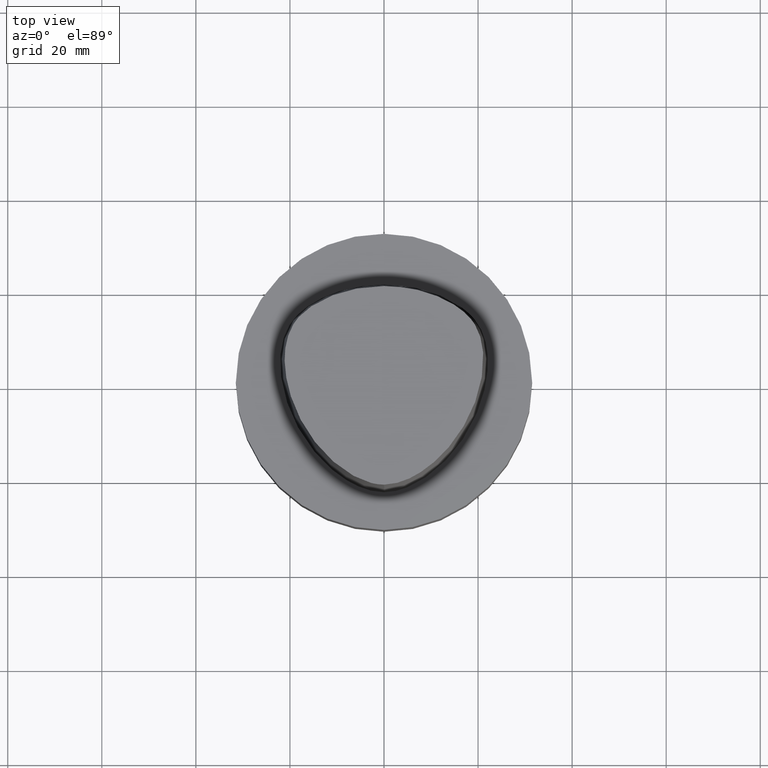
[diagram: clean part render]
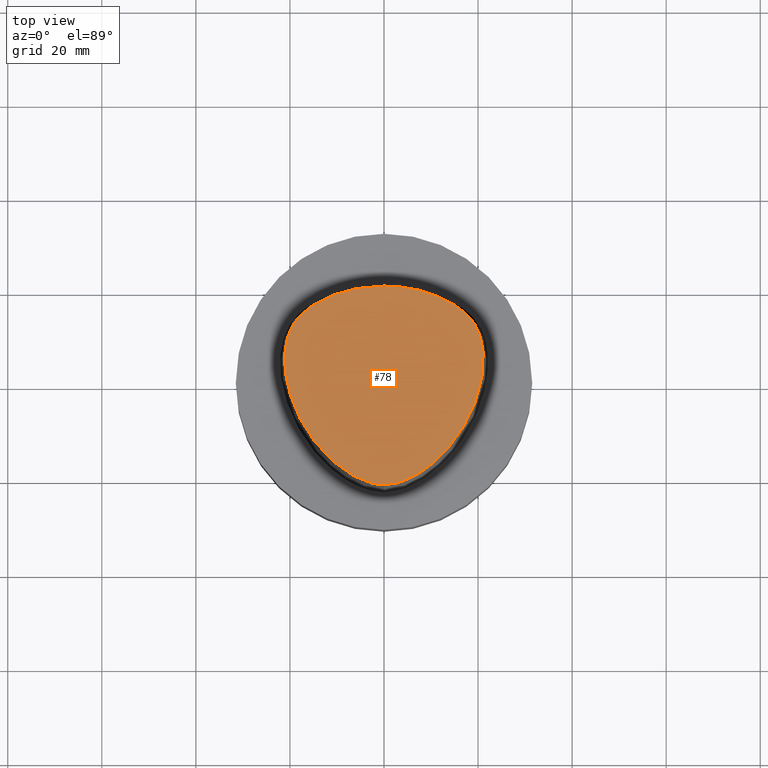
[diagram: same view with one face highlighted and labeled with its STEP entity id]
A machine part, top view. The second image highlights one B-rep face of the part: STEP entity #78.
In plain terms, the highlighted planar face has unit normal (-0, 0, 1).
Its self-contained STEP definition (entity closure, byte-faithful):
#78=ADVANCED_FACE('',(#92),#93,.T.);
#92=FACE_OUTER_BOUND('',#255,.T.);
#93=PLANE('',#256);
#255=EDGE_LOOP('',(#288,#289));
#256=AXIS2_PLACEMENT_3D('',#290,#291,#292);
#288=ORIENTED_EDGE('',*,*,#329,.T.);
#289=ORIENTED_EDGE('',*,*,#326,.T.);
#290=CARTESIAN_POINT('',(0.008647668684817,1.77491953635526,38.0));
#291=DIRECTION('',(-0.0,2.95577857036584E-049,1.0));
#292=DIRECTION('',(1.0,0.0,0.0));
#326=EDGE_CURVE('',#342,#340,#343,.T.);
#329=EDGE_CURVE('',#340,#342,#347,.T.);
#340=VERTEX_POINT('',#379);
#342=VERTEX_POINT('',#382);
#343=B_SPLINE_CURVE_WITH_KNOTS('',3,(#383,#384,#385,#386,#387,#388,#389,#390,#391,#392,#393,#394,#395,#396,#397,#398),.UNSPECIFIED.,.F.,.F.,(4,1,1,1,1,1,1,1,1,1,1,1,1,4),(6.61513393087476,6.99917207152274,7.48193246986995,7.96289324787093,8.45540287038584,9.10291653679981,9.67129810936083,10.1618749681153,10.6358867802489,11.1080734988593,11.6043706019633,12.09451993853,12.6985979284494,13.2302678617486),.UNSPECIFIED.);
#347=B_SPLINE_CURVE_WITH_KNOTS('',3,(#420,#421,#422,#423,#424,#425,#426,#427,#428,#429,#430,#431,#432,#433,#434,#435),.UNSPECIFIED.,.F.,.F.,(4,1,1,1,1,1,1,1,1,1,1,1,1,4),(0.0,0.447924670568964,0.9388024242536,1.50591409090711,2.07314340012323,2.72424957442464,3.2253501842849,3.80982102049476,4.34867996267067,4.85900173381144,5.37972031856977,6.03459825488646,6.61113557741484,6.61513393087395),.UNSPECIFIED.);
#379=CARTESIAN_POINT('',(-0.001218547003662,19.7276821925089,38.0));
#382=CARTESIAN_POINT('',(0.038736923393866,-22.5191997536361,38.0));
#383=CARTESIAN_POINT('',(0.038736923394311,-22.519199753636,38.0));
#384=CARTESIAN_POINT('',(1.31742058183662,-22.512662269405,38.0));
#385=CARTESIAN_POINT('',(4.2093773447498,-21.9116226439989,38.0));
#386=CARTESIAN_POINT('',(8.20895504542113,-19.7798683845067,38.0));
#387=CARTESIAN_POINT('',(11.9784633234593,-16.681663904162,38.0));
#388=CARTESIAN_POINT('',(15.5308821579362,-12.5807487594113,38.0));
#389=CARTESIAN_POINT('',(18.4566248438667,-7.64932246015528,38.0));
#390=CARTESIAN_POINT('',(20.4036090752029,-2.27012499825289,38.0));
#391=CARTESIAN_POINT('',(21.2357187429189,2.79891401173156,38.0));
#392=CARTESIAN_POINT('',(21.0811206267748,7.62543090736657,38.0));
#393=CARTESIAN_POINT('',(19.3383577336563,12.2772250726194,38.0));
#394=CARTESIAN_POINT('',(15.5796322014404,15.5799672120682,38.0));
#395=CARTESIAN_POINT('',(10.8392956074438,17.9834601687347,38.0));
#396=CARTESIAN_POINT('',(5.56068045850571,19.4586143858472,38.0));
#397=CARTESIAN_POINT('',(1.77223893711014,19.6418877095654,38.0));
#398=CARTESIAN_POINT('',(-0.001218367817519,19.7276822012873,38.0));
#420=CARTESIAN_POINT('',(-0.001218547003662,19.7276821925089,38.0));
#421=CARTESIAN_POINT('',(-1.49408492138443,19.6585333605309,38.0));
#422=CARTESIAN_POINT('',(-4.62297391420352,19.513604770166,38.0));
#423=CARTESIAN_POINT('',(-9.56160616752212,18.4291575730197,38.0));
#424=CARTESIAN_POINT('',(-14.5427684976927,16.2697452580488,38.0));
#425=CARTESIAN_POINT('',(-19.4315563551602,12.5302108980807,38.0));
#426=CARTESIAN_POINT('',(-21.306358833612,6.76352894547076,38.0));
#427=CARTESIAN_POINT('',(-21.0724946936277,0.957075236984038,38.0));
#428=CARTESIAN_POINT('',(-19.7876470880144,-4.34628503581652,38.0));
#429=CARTESIAN_POINT('',(-17.5396999600095,-9.33314444653089,38.0));
#430=CARTESIAN_POINT('',(-14.645447733857,-13.7185760345629,38.0));
#431=CARTESIAN_POINT('',(-10.7996726536643,-17.856257282137,38.0));
#432=CARTESIAN_POINT('',(-6.00479510196376,-21.2687382067675,38.0));
#433=CARTESIAN_POINT('',(-1.90747171908525,-22.5250621415864,38.0));
#434=CARTESIAN_POINT('',(0.025424107066464,-22.5192678176378,38.0));
#435=CARTESIAN_POINT('',(0.038736923394311,-22.519199753636,38.0));